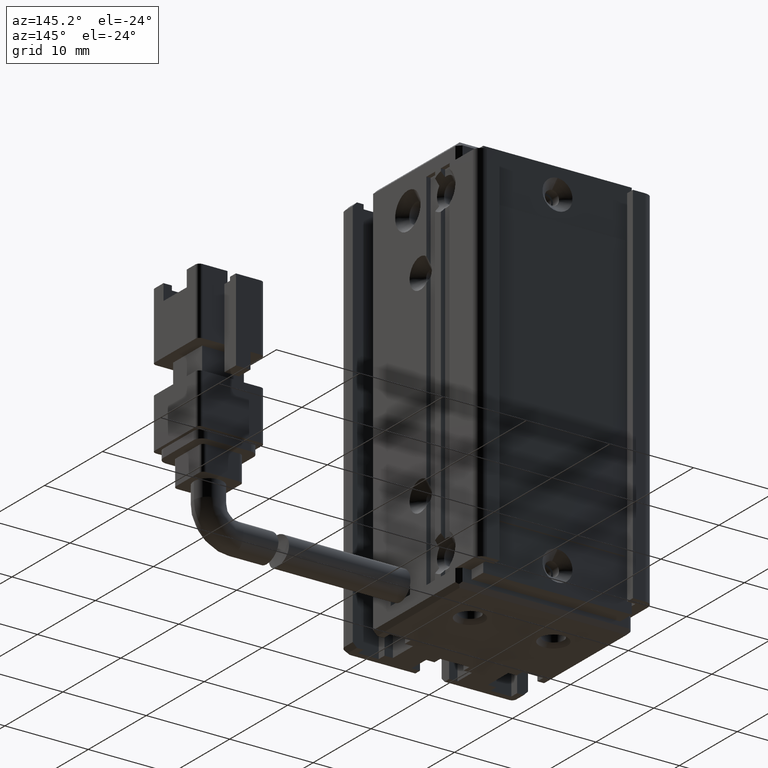
[diagram: clean part render]
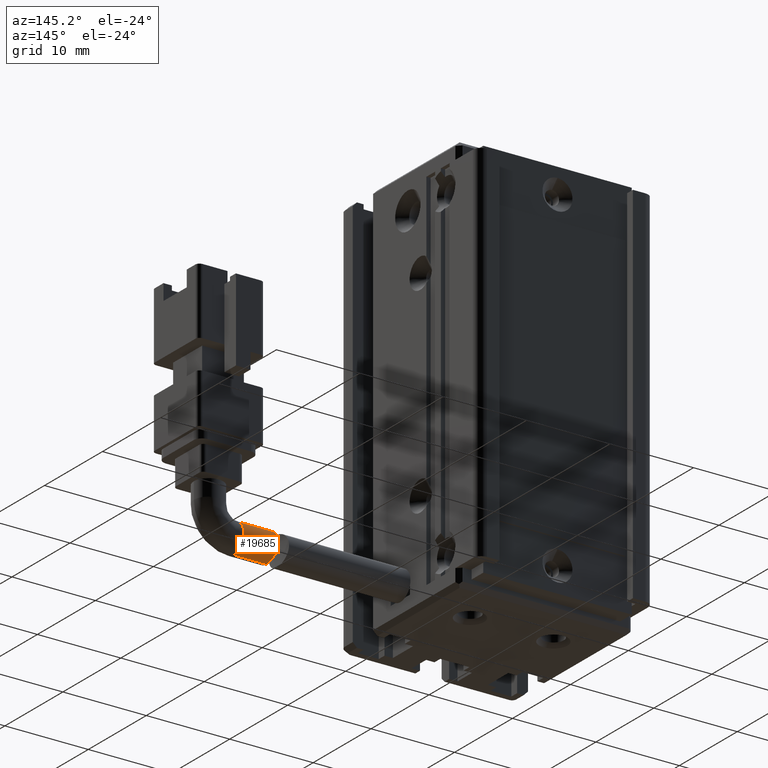
[diagram: same view with one face highlighted and labeled with its STEP entity id]
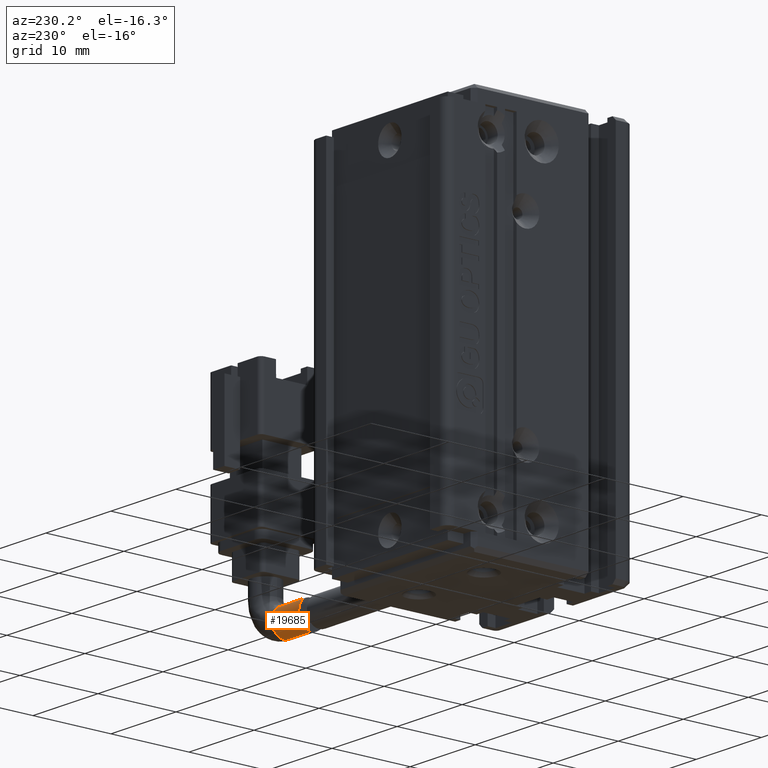
[diagram: same view with one face highlighted and labeled with its STEP entity id]
A machine part, auxiliary view. The second image highlights one B-rep face of the part: STEP entity #19685.
A second angle (auxiliary view) of the same face is appended — the face is thin or edge-on in the first view.
In plain terms, the highlighted cylindrical surface (edge-blend (fillet) strip) has radius 1.75 mm, axis along (-1, -0, -0).
Its self-contained STEP definition (entity closure, byte-faithful):
#67 = EDGE_CURVE ( 'NONE', #33375, #34989, #33068, .T. ) ;
#561 = AXIS2_PLACEMENT_3D ( 'NONE', #22520, #25525, #2440 ) ;
#981 = DIRECTION ( 'NONE',  ( 1.000000000000000000, 3.304235192336770000E-015, 8.579261317967046800E-031 ) ) ;
#1368 = DIRECTION ( 'NONE',  ( 0.0000000000000000000, 0.0000000000000000000, -1.000000000000000000 ) ) ;
#1601 = CARTESIAN_POINT ( 'NONE',  ( 67.47136508411077200, 21.60678308936699600, -137.2000000000001300 ) ) ;
#1742 = CARTESIAN_POINT ( 'NONE',  ( 67.46031785294418600, 21.94513311441134800, -137.1438409548440800 ) ) ;
#2440 = DIRECTION ( 'NONE',  ( 0.0000000000000000000, 0.0000000000000000000, 1.000000000000000000 ) ) ;
#4340 = CARTESIAN_POINT ( 'NONE',  ( 67.40417489604252000, 22.55898536363726900, -136.8408297553675100 ) ) ;
#4596 = CARTESIAN_POINT ( 'NONE',  ( 67.38588623058109300, 22.37010254569658200, -133.9327239027712400 ) ) ;
#4646 = CARTESIAN_POINT ( 'NONE',  ( 71.42537974683536100, 21.49073232304856900, -133.7000000000000200 ) ) ;
#4716 = CARTESIAN_POINT ( 'NONE',  ( 67.39139769048792100, 22.64866193278273700, -136.7670594754866300 ) ) ;
#4854 = CARTESIAN_POINT ( 'NONE',  ( 67.34206032523766800, 22.64680295575514200, -134.1312272577276600 ) ) ;
#6407 = CARTESIAN_POINT ( 'NONE',  ( 67.44984085051338200, 21.49073232304856200, -133.6999999999999900 ) ) ;
#7129 = EDGE_CURVE ( 'NONE', #33375, #15348, #23174, .T. ) ;
#7319 = CARTESIAN_POINT ( 'NONE',  ( 67.45371154829165100, 22.05656144212894200, -137.1099719621386200 ) ) ;
#7838 = CARTESIAN_POINT ( 'NONE',  ( 67.25170846070962200, 23.15140324081145500, -134.8861680324227500 ) ) ;
#8402 = ORIENTED_EDGE ( 'NONE', *, *, #67, .F. ) ;
#8782 = CARTESIAN_POINT ( 'NONE',  ( 71.42537974683536100, 21.49073232304857600, -137.2000000000000200 ) ) ;
#9296 = CARTESIAN_POINT ( 'NONE',  ( 71.42537974683536100, 21.49073232304857600, -133.7000000000000200 ) ) ;
#9340 = ORIENTED_EDGE ( 'NONE', *, *, #7129, .T. ) ;
#10585 = CARTESIAN_POINT ( 'NONE',  ( 67.35205659423870400, 22.88985874260199100, -136.5255146834794600 ) ) ;
#10839 = CARTESIAN_POINT ( 'NONE',  ( 67.44984085051336800, 21.60680804937865000, -133.6999999999999600 ) ) ;
#12434 = AXIS2_PLACEMENT_3D ( 'NONE', #28114, #981, #1368 ) ;
#12460 = CYLINDRICAL_SURFACE ( 'NONE', #561, 1.750000000000001600 ) ;
#13452 = CARTESIAN_POINT ( 'NONE',  ( 67.27616060327723300, 23.19423489987271100, -135.9107937827152500 ) ) ;
#13568 = CARTESIAN_POINT ( 'NONE',  ( 67.44984085051338200, 21.49073232304856200, -133.6999999999999900 ) ) ;
#13690 = CARTESIAN_POINT ( 'NONE',  ( 67.24403675424812800, 23.22942088000613100, -135.2206007779651000 ) ) ;
#14044 = CARTESIAN_POINT ( 'NONE',  ( 67.47136508411073000, 21.49073232304856200, -137.1999999999999900 ) ) ;
#15348 = VERTEX_POINT ( 'NONE', #14044 ) ;
#15562 = CARTESIAN_POINT ( 'NONE',  ( 71.42537974683536100, 21.49073232304856900, -137.2000000000000200 ) ) ;
#15772 = EDGE_LOOP ( 'NONE', ( #8402, #9340, #35758, #24473 ) ) ;
#16306 = CARTESIAN_POINT ( 'NONE',  ( 67.24724706289268300, 23.18459100183054700, -134.9955721427109000 ) ) ;
#18562 = FACE_OUTER_BOUND ( 'NONE', #15772, .T. ) ;
#19227 = CARTESIAN_POINT ( 'NONE',  ( 67.42333103305581700, 22.05694026214441900, -133.7901962318933300 ) ) ;
#19363 = CARTESIAN_POINT ( 'NONE',  ( 67.32343363472472200, 23.01980749161757000, -136.3310113894276300 ) ) ;
#19685 = ADVANCED_FACE ( 'NONE', ( #18562 ), #12460, .T. ) ;
#20684 = DIRECTION ( 'NONE',  ( -1.000000000000000000, -3.304235192336770000E-015, -8.579261317967046800E-031 ) ) ;
#21784 = VECTOR ( 'NONE', #24318, 1000.000000000000000 ) ;
#22236 = CARTESIAN_POINT ( 'NONE',  ( 67.35705463766365100, 22.55897775111894500, -134.0592194820502800 ) ) ;
#22357 = CARTESIAN_POINT ( 'NONE',  ( 67.24536993501358500, 23.24083235749495200, -135.3370683193368200 ) ) ;
#22520 = CARTESIAN_POINT ( 'NONE',  ( 71.42537974683536100, 21.49073232304857600, -135.4500000000000200 ) ) ;
#22722 = CARTESIAN_POINT ( 'NONE',  ( 67.29863038595921400, 22.89020791479749700, -134.3745412688684000 ) ) ;
#23174 = LINE ( 'NONE', #8782, #38244 ) ;
#24318 = DIRECTION ( 'NONE',  ( -1.000000000000000000, -3.304235192336770000E-015, -8.579261317967046800E-031 ) ) ;
#24473 = ORIENTED_EDGE ( 'NONE', *, *, #25954, .F. ) ;
#24836 = VERTEX_POINT ( 'NONE', #6407 ) ;
#25477 = CARTESIAN_POINT ( 'NONE',  ( 67.47136508411073000, 21.49073232304856200, -137.1999999999999900 ) ) ;
#25525 = DIRECTION ( 'NONE',  ( -1.000000000000000000, -3.304235192336770000E-015, -8.579261317967046800E-031 ) ) ;
#25730 = CARTESIAN_POINT ( 'NONE',  ( 67.43698678606547500, 22.26849321272066400, -137.0218643407056600 ) ) ;
#25954 = EDGE_CURVE ( 'NONE', #34989, #24836, #32079, .T. ) ;
#28114 = CARTESIAN_POINT ( 'NONE',  ( 71.42537974683536100, 21.49073232304857600, -135.4500000000000200 ) ) ;
#28757 = CARTESIAN_POINT ( 'NONE',  ( 67.44624549987466400, 21.72301278747130500, -133.7116921315142700 ) ) ;
#31381 = CARTESIAN_POINT ( 'NONE',  ( 67.42693556278865700, 22.36894299564884400, -136.9679980176778100 ) ) ;
#31520 = CARTESIAN_POINT ( 'NONE',  ( 67.43295112024853200, 21.94802212828940200, -133.7569097797770900 ) ) ;
#31775 = CARTESIAN_POINT ( 'NONE',  ( 67.27330235168545900, 23.01925002648934900, -134.5673499168243300 ) ) ;
#32079 = LINE ( 'NONE', #9296, #21784 ) ;
#33068 = CIRCLE ( 'NONE', #12434, 1.750000000000001600 ) ;
#33375 = VERTEX_POINT ( 'NONE', #15562 ) ;
#33950 = EDGE_CURVE ( 'NONE', #15348, #24836, #38620, .T. ) ;
#34282 = CARTESIAN_POINT ( 'NONE',  ( 67.25727913656172100, 23.24053022228710900, -135.6804823031922400 ) ) ;
#34409 = CARTESIAN_POINT ( 'NONE',  ( 67.39984329400940100, 22.26783481747914500, -133.8778512500192600 ) ) ;
#34989 = VERTEX_POINT ( 'NONE', #4646 ) ;
#35758 = ORIENTED_EDGE ( 'NONE', *, *, #33950, .T. ) ;
#37454 = CARTESIAN_POINT ( 'NONE',  ( 67.46908930745947000, 21.72083805389395300, -137.1885708533534700 ) ) ;
#38244 = VECTOR ( 'NONE', #20684, 1000.000000000000000 ) ;
#38620 = B_SPLINE_CURVE_WITH_KNOTS ( 'NONE', 3,
 ( #25477, #1601, #37454, #1742, #7319, #25730, #31381, #4340, #4716, #10585, #19363, #13452, #34282, #22357, #13690, #16306, #7838, #31775, #22722, #4854, #22236, #4596, #34409, #19227, #31520, #28757, #10839, #13568 ),
 .UNSPECIFIED., .F., .F.,
 ( 4, 2, 2, 2, 2, 2, 2, 2, 2, 2, 2, 2, 2, 4 ),
 ( 0.005489779578333653700, 0.005832890876639693400, 0.006176002174945732300, 0.006519113473251771100, 0.006862224771557810800, 0.007548447368169828600, 0.008234669964781846400, 0.008577781263087815000, 0.008920892561393781900, 0.009607115158005719000, 0.009950226456311654600, 0.01029333775461759000, 0.01063644905292352600, 0.01097956035122946300 ),
 .UNSPECIFIED. ) ;